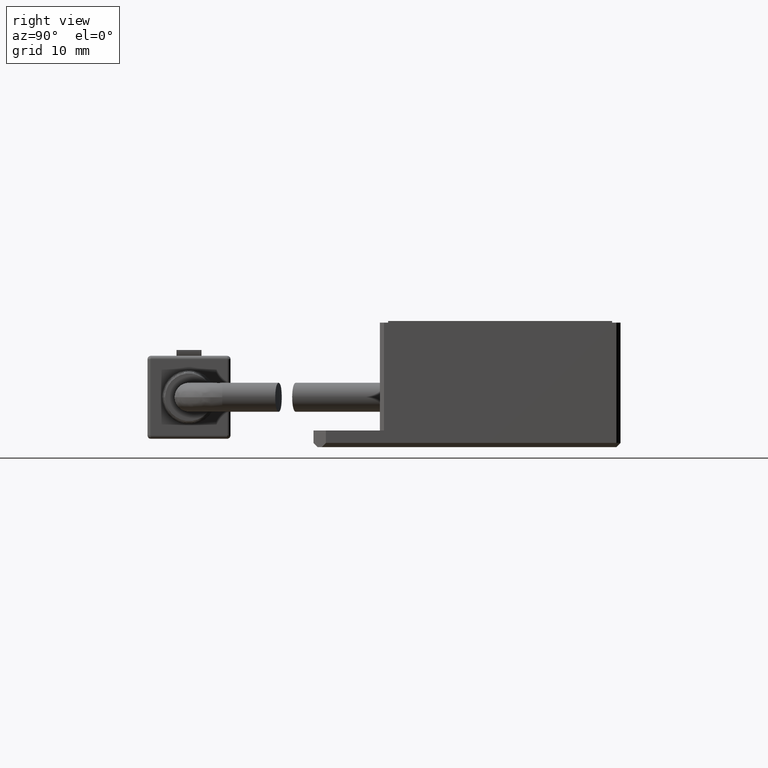
[diagram: clean part render]
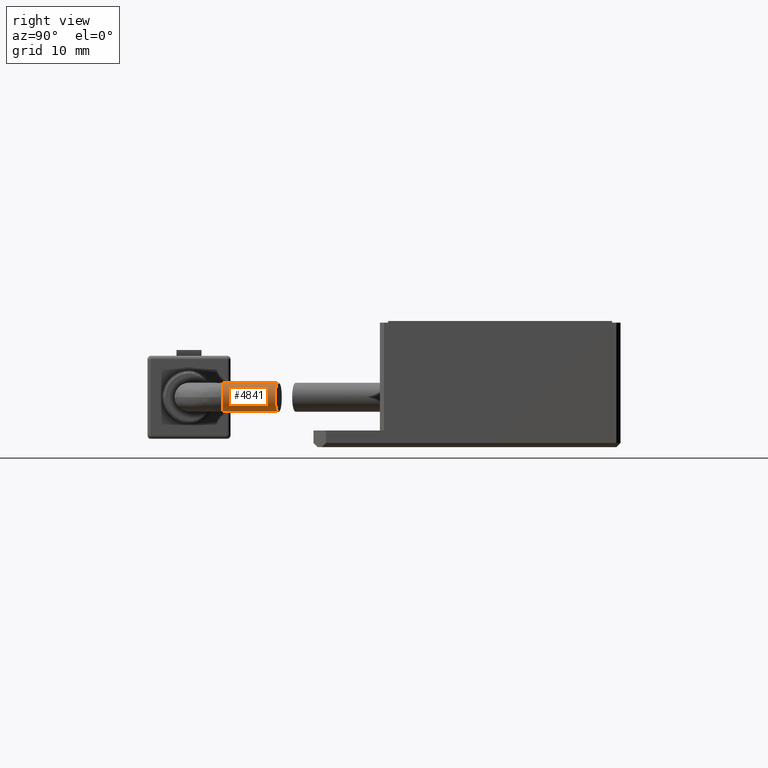
[diagram: same view with one face highlighted and labeled with its STEP entity id]
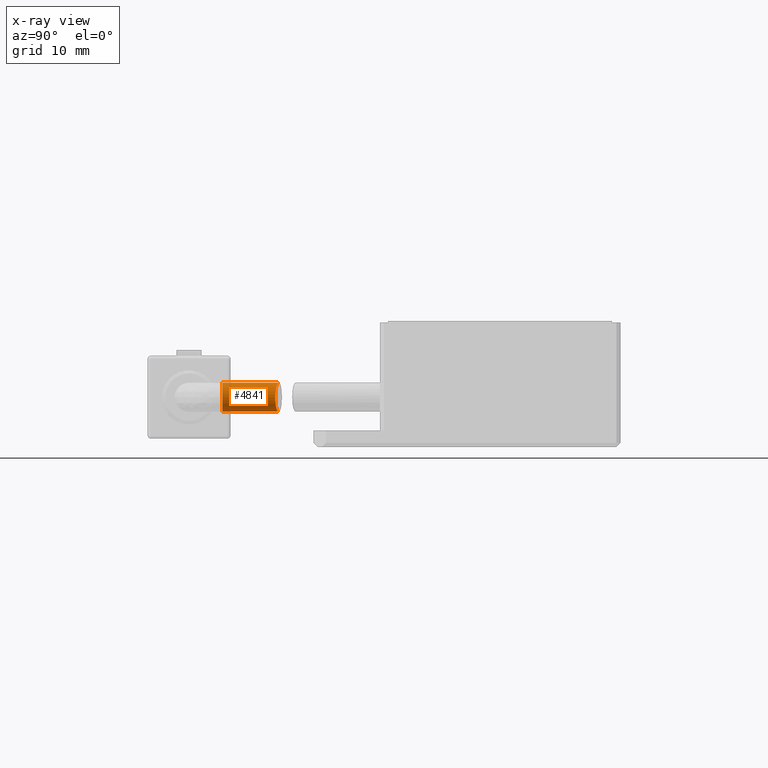
[diagram: x-ray of the same camera — body ghosted, the highlighted face saturated]
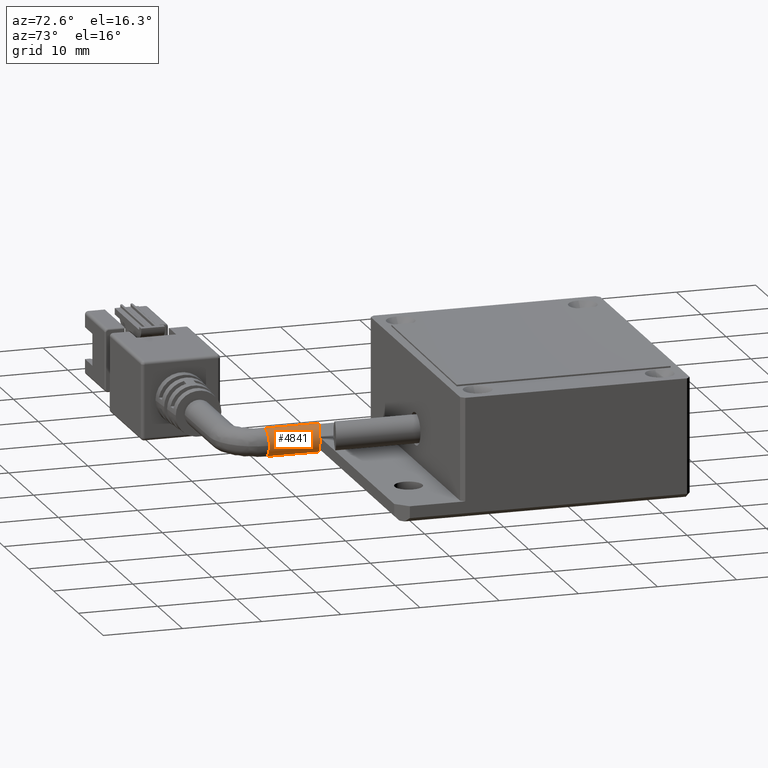
[diagram: same view with one face highlighted and labeled with its STEP entity id]
A machine part, right view. The second image highlights one B-rep face of the part: STEP entity #4841.
The next image is the same camera in x-ray: the body ghosted, the highlighted face saturated — about 0% of this face is hidden behind the body in this view.
A second angle (auxiliary view) of the same face is appended — the face is thin or edge-on in the first view.
In plain terms, the highlighted cylindrical surface (edge-blend (fillet) strip) has radius 1.75 mm, axis along (-0, 1, 0).
Its self-contained STEP definition (entity closure, byte-faithful):
#170 = VECTOR ( 'NONE', #23089, 1000.000000000000000 ) ;
#589 = EDGE_CURVE ( 'NONE', #14193, #15786, #800, .T. ) ;
#800 = CIRCLE ( 'NONE', #15896, 1.749999999999999800 ) ;
#933 = CARTESIAN_POINT ( 'NONE',  ( 0.4705994654448236700, -27.25921603604882600, 2.249999999983630000 ) ) ;
#1751 = CARTESIAN_POINT ( 'NONE',  ( 1.779946968896074100, -27.57120458288233100, 2.833290574326269100 ) ) ;
#1849 = CARTESIAN_POINT ( 'NONE',  ( 1.782228810763843800, -27.57170239270458700, 5.164266606667809800 ) ) ;
#2966 = AXIS2_PLACEMENT_3D ( 'NONE', #6419, #20774, #8487 ) ;
#3816 = CARTESIAN_POINT ( 'NONE',  ( 1.982901576065600600, -27.61415427131332800, 3.111885552640538700 ) ) ;
#3903 = CARTESIAN_POINT ( 'NONE',  ( 1.528620310074500600, -27.51530742273378400, 5.398564306648186300 ) ) ;
#4102 = ORIENTED_EDGE ( 'NONE', *, *, #11271, .F. ) ;
#4821 = ORIENTED_EDGE ( 'NONE', *, *, #589, .F. ) ;
#4841 = ADVANCED_FACE ( 'NONE', ( #9040 ), #22146, .T. ) ;
#4937 = ORIENTED_EDGE ( 'NONE', *, *, #13034, .T. ) ;
#4984 = CARTESIAN_POINT ( 'NONE',  ( 0.4705994654448236700, -34.05364642993505000, 2.249999999983630400 ) ) ;
#4988 = AXIS2_PLACEMENT_3D ( 'NONE', #17514, #5111, #5188 ) ;
#5111 = DIRECTION ( 'NONE',  ( -6.162975822039154700E-033, 1.000000000000000000, 0.0000000000000000000 ) ) ;
#5188 = DIRECTION ( 'NONE',  ( 0.0000000000000000000, 0.0000000000000000000, -1.000000000000000000 ) ) ;
#5855 = CARTESIAN_POINT ( 'NONE',  ( 2.172950268146931900, -27.65255147090966400, 3.533533329212762200 ) ) ;
#5956 = CARTESIAN_POINT ( 'NONE',  ( 1.237130582987084900, -27.44734975123039100, 5.577277365598583000 ) ) ;
#6023 = CARTESIAN_POINT ( 'NONE',  ( 2.220599465444822700, -34.05364642993505000, 3.999999999983630400 ) ) ;
#6118 = CARTESIAN_POINT ( 'NONE',  ( 0.4705994654448234500, -34.05364642993505000, 5.749999999983630900 ) ) ;
#6419 = CARTESIAN_POINT ( 'NONE',  ( 0.4705994654448236700, -34.05364642993505000, 3.999999999983630400 ) ) ;
#7083 = DIRECTION ( 'NONE',  ( -6.162975822039154700E-033, 1.000000000000000000, 0.0000000000000000000 ) ) ;
#7839 = VERTEX_POINT ( 'NONE', #19870 ) ;
#7854 = CARTESIAN_POINT ( 'NONE',  ( 0.6961282057914959200, -27.31529450110374700, 2.260965867139977700 ) ) ;
#7941 = CARTESIAN_POINT ( 'NONE',  ( 2.220722665809186800, -27.66160915184166000, 4.113711037788577100 ) ) ;
#8032 = CIRCLE ( 'NONE', #2966, 1.749999999999999800 ) ;
#8033 = CARTESIAN_POINT ( 'NONE',  ( 0.6979579548987925300, -27.31567944683778000, 5.749999999985917900 ) ) ;
#8487 = DIRECTION ( 'NONE',  ( 1.000000000000000000, 0.0000000000000000000, 0.0000000000000000000 ) ) ;
#9040 = FACE_OUTER_BOUND ( 'NONE', #15598, .T. ) ;
#9735 = CARTESIAN_POINT ( 'NONE',  ( 0.5842705167831494500, -27.28744570665380900, 2.249999999983630400 ) ) ;
#9923 = CARTESIAN_POINT ( 'NONE',  ( 1.026000025372330500, -27.39651587232180000, 2.336588623527107600 ) ) ;
#10015 = CARTESIAN_POINT ( 'NONE',  ( 2.163415083129049100, -27.65046615361096000, 4.458643995771961200 ) ) ;
#10547 = EDGE_CURVE ( 'NONE', #15786, #24909, #8032, .T. ) ;
#11271 = EDGE_CURVE ( 'NONE', #24909, #7839, #16567, .T. ) ;
#11964 = CARTESIAN_POINT ( 'NONE',  ( 1.336456391887951500, -27.47083564442339200, 2.474980541046171400 ) ) ;
#12068 = CARTESIAN_POINT ( 'NONE',  ( 2.040181579027411400, -27.62584854324930100, 4.782504087569869000 ) ) ;
#12791 = EDGE_CURVE ( 'NONE', #14193, #20320, #15771, .T. ) ;
#13034 = EDGE_CURVE ( 'NONE', #20320, #7839, #15237, .T. ) ;
#13104 = ORIENTED_EDGE ( 'NONE', *, *, #12791, .T. ) ;
#13844 = ORIENTED_EDGE ( 'NONE', *, *, #10547, .F. ) ;
#13938 = CARTESIAN_POINT ( 'NONE',  ( 0.4705994654448236700, -27.25921603604882600, 2.249999999983630000 ) ) ;
#14021 = CARTESIAN_POINT ( 'NONE',  ( 1.616818867402533400, -27.53521795709448800, 2.672678316559652200 ) ) ;
#14107 = CARTESIAN_POINT ( 'NONE',  ( 1.855503629250926800, -27.58740402305662400, 5.075979925360083900 ) ) ;
#14193 = VERTEX_POINT ( 'NONE', #24882 ) ;
#15237 = B_SPLINE_CURVE_WITH_KNOTS ( 'NONE', 3,
 ( #13938, #9735, #7854, #22171, #9923, #24245, #11964, #26267, #14021, #1751, #16097, #3816, #18176, #5855, #20232, #7941, #22264, #10015, #24340, #12068, #26357, #14107, #1849, #16187, #3903, #18267, #5956, #20314, #8033, #22357 ),
 .UNSPECIFIED., .F., .F.,
 ( 4, 2, 2, 2, 2, 2, 2, 2, 2, 2, 2, 2, 2, 2, 4 ),
 ( 0.0000000000000000000, 0.0003464661066151884900, 0.0006929322132303769800, 0.001039398319845565600, 0.001385864426460754000, 0.001732330533075942400, 0.002078796639691131200, 0.002771728852921509200, 0.003118194959536697400, 0.003464661066151884700, 0.003811127172767072900, 0.004157593279382260600, 0.004504059385997448800, 0.004850525492612636900, 0.005543457705843009800 ),
 .UNSPECIFIED. ) ;
#15598 = EDGE_LOOP ( 'NONE', ( #4102, #13844, #4821, #13104, #4937 ) ) ;
#15771 = LINE ( 'NONE', #4984, #25984 ) ;
#15786 = VERTEX_POINT ( 'NONE', #6023 ) ;
#15896 = AXIS2_PLACEMENT_3D ( 'NONE', #24386, #24478, #24567 ) ;
#16097 = CARTESIAN_POINT ( 'NONE',  ( 1.853248661593073900, -27.58692454863616600, 2.921071760591324600 ) ) ;
#16187 = CARTESIAN_POINT ( 'NONE',  ( 1.617521260607704300, -27.53537837985451700, 5.326822771389914600 ) ) ;
#16567 = LINE ( 'NONE', #25126, #170 ) ;
#17514 = CARTESIAN_POINT ( 'NONE',  ( 0.4705994654448236700, -34.05364642993505000, 3.999999999983630400 ) ) ;
#18176 = CARTESIAN_POINT ( 'NONE',  ( 2.038883117595164100, -27.62558413327445100, 3.214978510470042100 ) ) ;
#18267 = CARTESIAN_POINT ( 'NONE',  ( 1.339041789660078600, -27.47144249805376500, 5.523547884711448800 ) ) ;
#19870 = CARTESIAN_POINT ( 'NONE',  ( 0.4705994654448241200, -27.25921603604883000, 5.749999999983630900 ) ) ;
#20232 = CARTESIAN_POINT ( 'NONE',  ( 2.220350033652276800, -27.66153725950757200, 3.766936456401981800 ) ) ;
#20314 = CARTESIAN_POINT ( 'NONE',  ( 0.9219955632094954900, -27.37147827352871600, 5.705941655460136100 ) ) ;
#20320 = VERTEX_POINT ( 'NONE', #933 ) ;
#20774 = DIRECTION ( 'NONE',  ( -1.836970198721029700E-016, -1.000000000000000000, 1.232595164407830900E-032 ) ) ;
#22146 = CYLINDRICAL_SURFACE ( 'NONE', #4988, 1.749999999999999800 ) ;
#22171 = CARTESIAN_POINT ( 'NONE',  ( 0.9164837803469829700, -27.36970696434416400, 2.304037115471747800 ) ) ;
#22264 = CARTESIAN_POINT ( 'NONE',  ( 2.209167579536794900, -27.65939197745179700, 4.230997712117315700 ) ) ;
#22357 = CARTESIAN_POINT ( 'NONE',  ( 0.4705994654448241200, -27.25921603604883000, 5.749999999983630900 ) ) ;
#23089 = DIRECTION ( 'NONE',  ( -6.162975822039154700E-033, 1.000000000000000000, 0.0000000000000000000 ) ) ;
#24245 = CARTESIAN_POINT ( 'NONE',  ( 1.236408639808839900, -27.44717829108618500, 2.422361417242743900 ) ) ;
#24340 = CARTESIAN_POINT ( 'NONE',  ( 2.129578422622142600, -27.64382398856169900, 4.568937147663766600 ) ) ;
#24386 = CARTESIAN_POINT ( 'NONE',  ( 0.4705994654448236700, -34.05364642993505000, 3.999999999983630400 ) ) ;
#24478 = DIRECTION ( 'NONE',  ( -1.836970198721029700E-016, -1.000000000000000000, 1.232595164407830900E-032 ) ) ;
#24567 = DIRECTION ( 'NONE',  ( 1.000000000000000000, 0.0000000000000000000, 0.0000000000000000000 ) ) ;
#24882 = CARTESIAN_POINT ( 'NONE',  ( 0.4705994654448236700, -34.05364642993505000, 2.249999999983630000 ) ) ;
#24909 = VERTEX_POINT ( 'NONE', #6118 ) ;
#25126 = CARTESIAN_POINT ( 'NONE',  ( 0.4705994654448234500, -34.05364642993505000, 5.749999999983630000 ) ) ;
#25984 = VECTOR ( 'NONE', #7083, 1000.000000000000000 ) ;
#26267 = CARTESIAN_POINT ( 'NONE',  ( 1.526263148372569900, -27.51477043832147400, 2.599654772636150700 ) ) ;
#26357 = CARTESIAN_POINT ( 'NONE',  ( 1.984257277988099100, -27.61443294283117600, 4.885738318714003500 ) ) ;